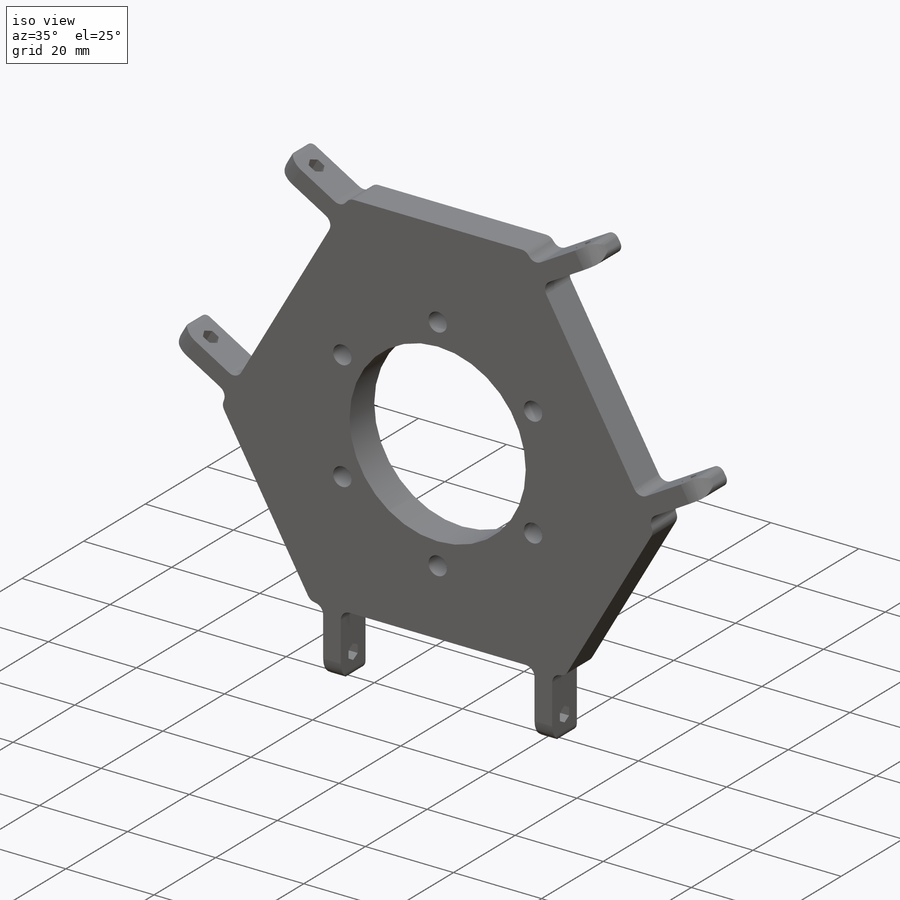
[diagram: iso view]
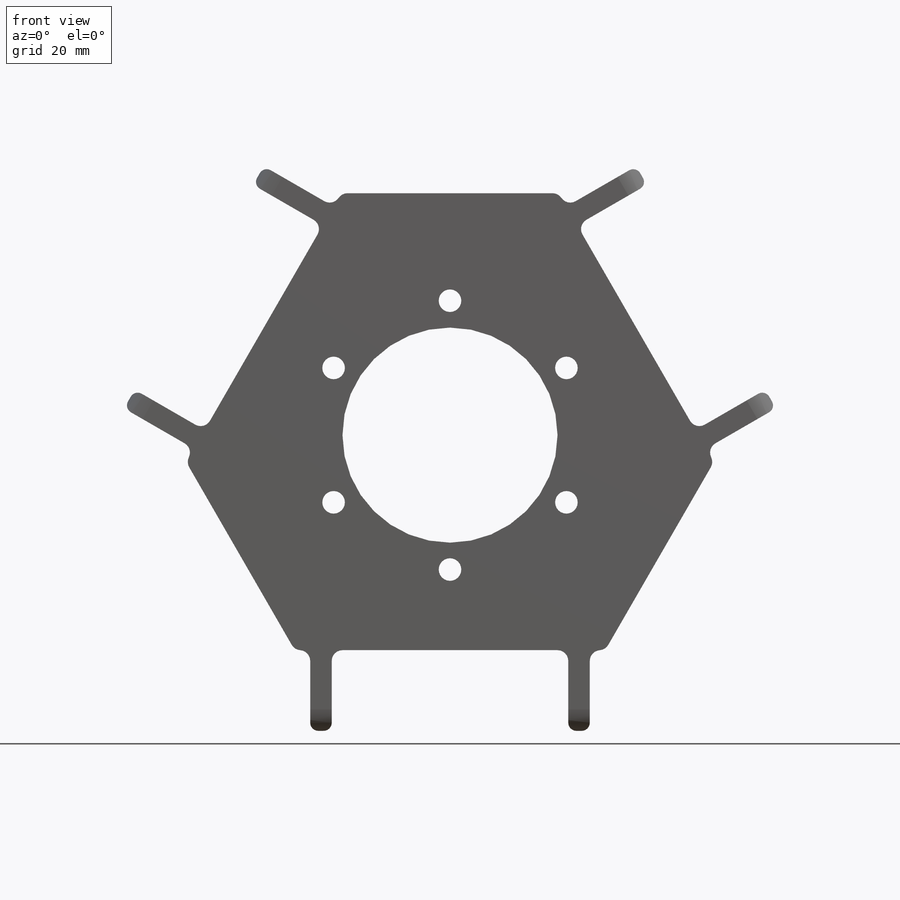
[diagram: front view]
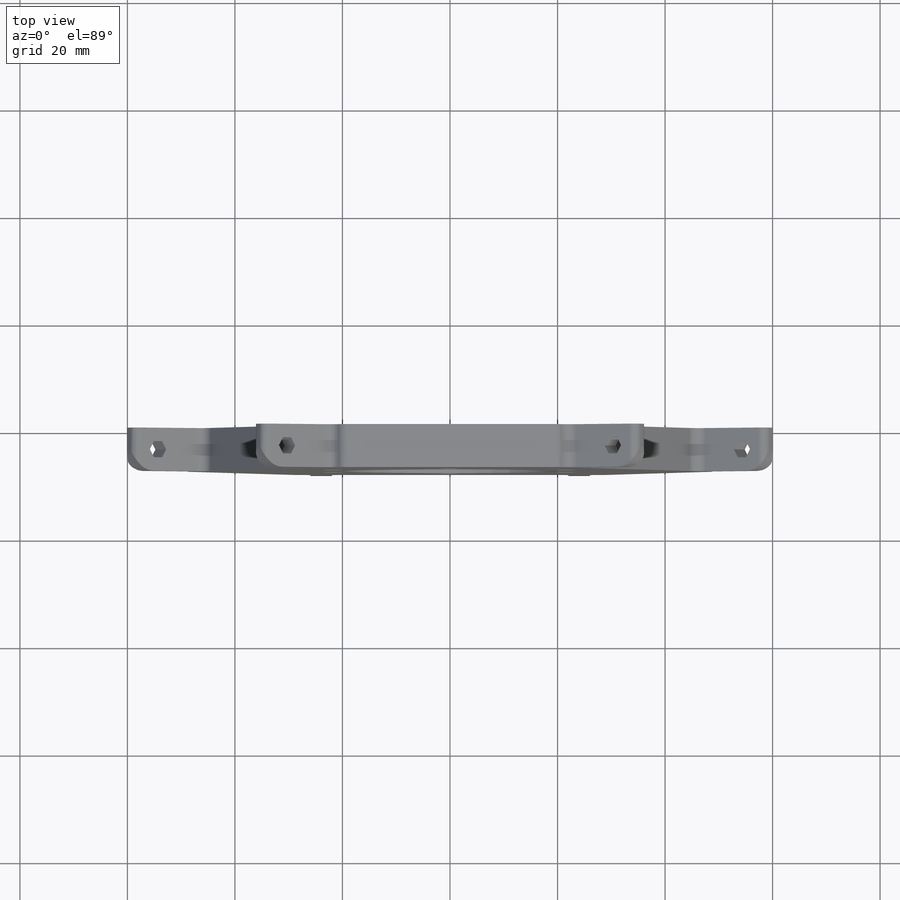
[diagram: top view]
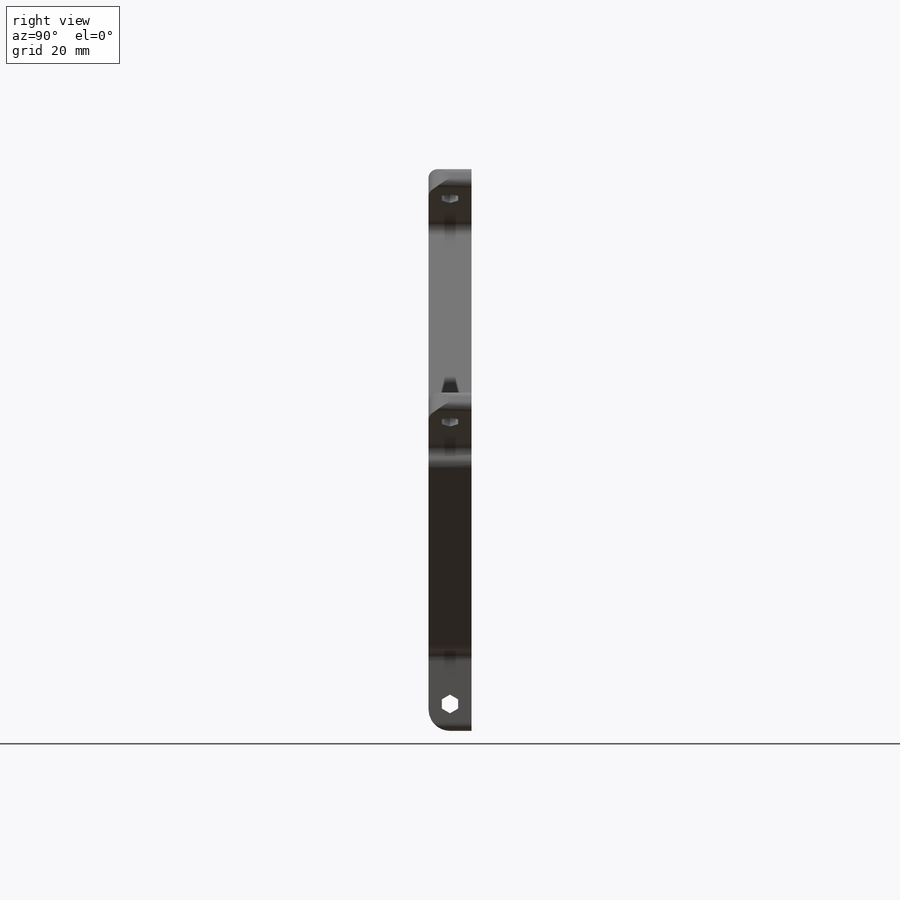
[diagram: right view]
SOLIDWORKS PART (.sldprt)
format: sldprt  version: not decoded by parser v0  size: 422,400 bytes
history: native  units: mm
features: sketch x5, mirror x3, fillet x3, extrude x2, pattern_circular x2, material x1, cut_extrude x1 (+11 scaffold rows collapsed)
feature tree (28):
  scaffold x11  (default folders/planes/origin — collapsed)
  material  "Material <not specified>"
  sketch  "Sketch1"  dims[c1.D1=40.0mm c1.D2=~65.005377mm c1.D3=~70.041004mm c2.D2=80.0mm c2.D3=40.0mm c2.D4=~89.442719mm c3.D2=40.0mm c3.D4=45.0mm c3.D5=40.0mm c3.D6=45.0mm c3.D7=45.0mm]
  extrude  "Boss-Extrude1"  Depth=8mm
  sketch  "Sketch3"  dims[c1.D1=4.0mm c1.D3=3.0mm c2.D1=10.0mm c2.D2=15.0mm c2.D4=5.0mm c2.D5=4.0mm c2.D6=5.0mm]
  extrude  "Boss-Extrude3"  Depth=4mm
  mirror  "Mirror1"
  pattern_circular  "CirPattern1"  Count=3 Angle=360deg
  sketch  "Sketch4"  dims[D1=4.2mm D2=25.0mm]
  cut_extrude  "Cut-Extrude1"  [1 undecoded]
  pattern_circular  "CirPattern2"  Count=6 Angle=360deg
  fillet  "Fillet2"  Radius=2mm
  fillet  "Fillet4"  Radius=1.5mm
  sketch  "Sketch6"  dims[D1=~18.453073mm]
  mirror  "Axis2"
  sketch  "Sketch7"  dims[D1=~35.843824mm]
  mirror  "Axis3"
  fillet  "Fillet5"  Radius=2mm
decode coverage: 12 of 16 modeling features carry decoded parameters
note: ~ marks probable driven/reference dimensions
note: 1 parameter value undecoded
note: suppression state not decoded; provenance and decode notes live in map.json
